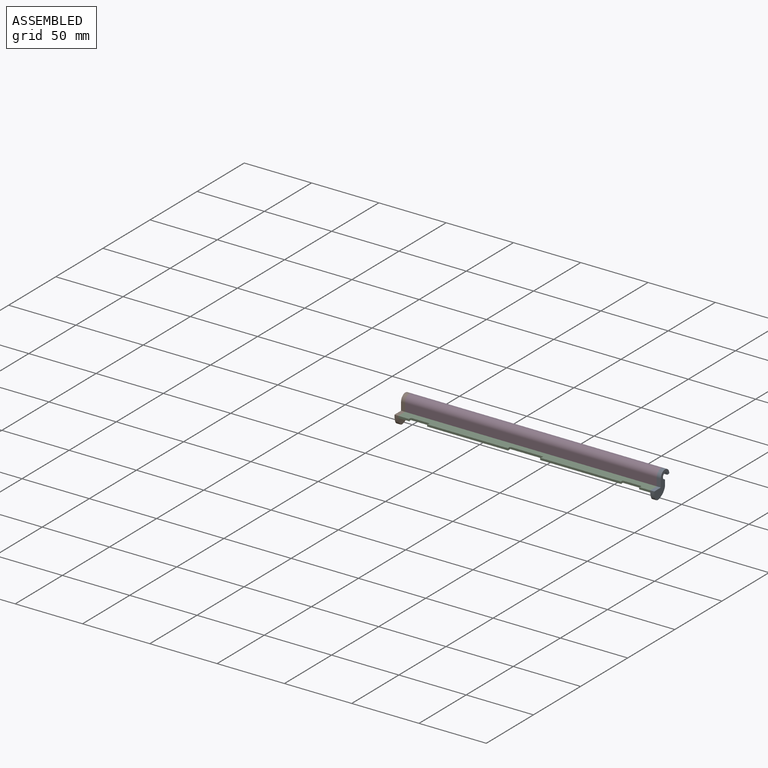
[diagram: assembled view]
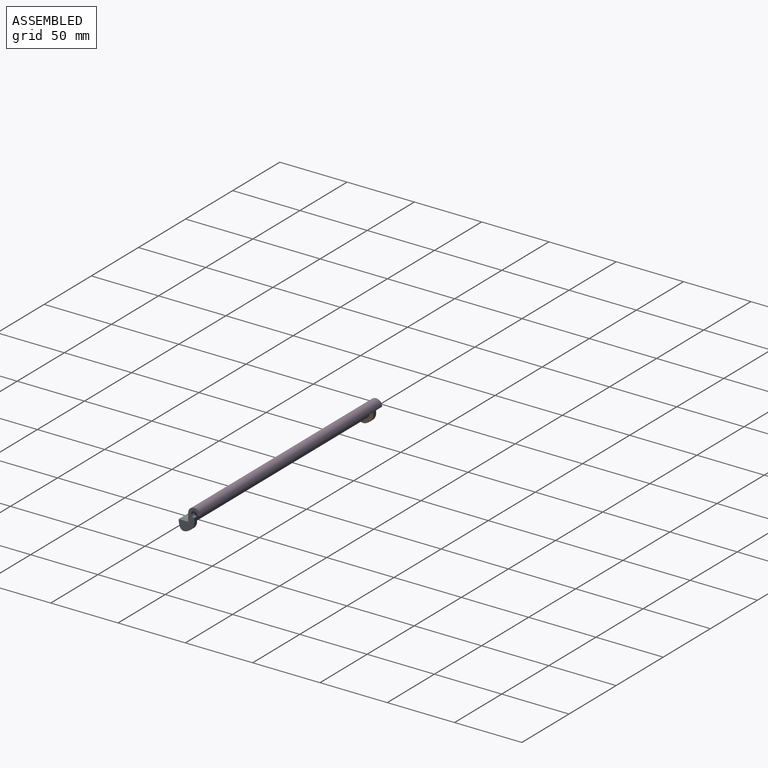
[diagram: assembled view, second angle]
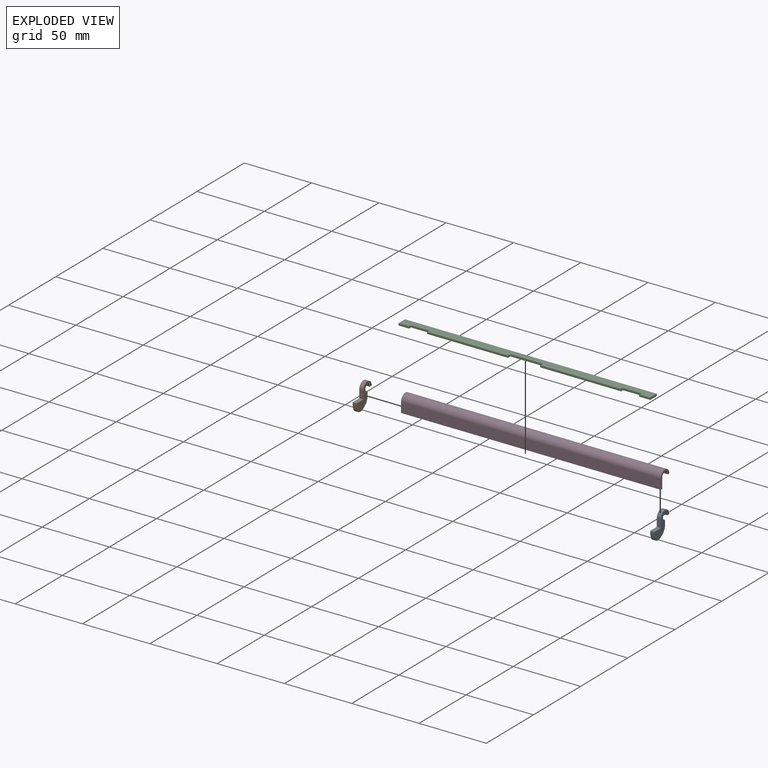
[diagram: exploded view]
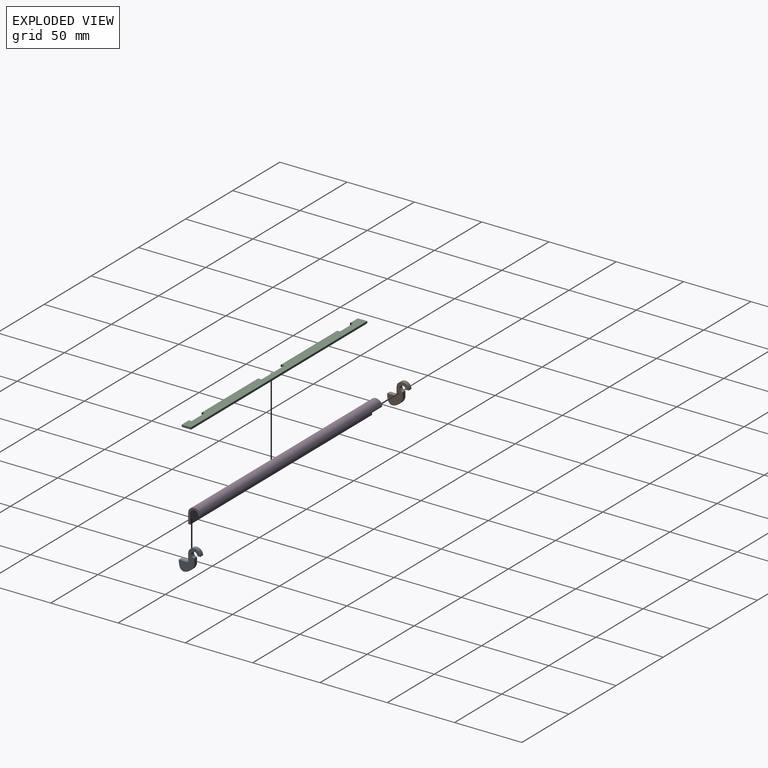
[diagram: exploded view, second angle]
ASSEMBLY  parts=4 mates=3
PART A: 9 faces, bbox 16x3x18.1 mm
  f0: cylinder r=4.5mm len=9mm, axis (0,1,0), area 42.4mm2, adj f1,f6,f7,f8
  f1: plane 6x3mm, normal (-1,0,0), area 18mm2, adj f0,f2,f7,f8
  f2: plane 7x3mm, normal (0,0,1), area 21mm2, adj f1,f3,f7,f8
  f3: extruded ~11.5x7.09mm, area 61mm2, adj f2,f4,f7,f8
  f4: plane 3.75x3mm, normal (1,0,0), area 11.2mm2, adj f3,f5,f7,f8
  f5: cylinder r=2.25mm len=4.5mm, axis (0,1,0), area 31.8mm2, adj f4,f6,f7,f8
  f6: plane 3x2.25mm, normal (0,0,-1), area 6.7mm2, adj f0,f5,f7,f8
  f7: plane 18.06x16.01mm, normal (0,-1,0), area 110mm2, adj f0,f1,f2,f3,f4,f5,f6
  f8: plane 18.06x16.01mm, normal (0,1,0), area 110mm2, adj f0,f1,f2,f3,f4,f5,f6
PART B: same geometry as A
PART C: 30 faces, bbox 187x7x1.5 mm
  f0: plane 1.5x1mm, normal (-1,0,0), area 1.5mm2, adj f1,f27,f28,f29
  f1: cylinder r=0.5mm len=1.5mm, axis (0,0,-1), area 1.2mm2, adj f0,f2,f28,f29
  f2: plane 60.5x1.5mm, normal (0,-1,0), area 90.8mm2, adj f1,f3,f28,f29
  f3: cylinder r=0.5mm len=1.5mm, axis (0,0,-1), area 1.2mm2, adj f2,f4,f28,f29
  f4: plane 1.5x1.5mm, normal (1,0,0), area 2.3mm2, adj f3,f5,f28,f29
  f5: cylinder r=0.5mm len=1.5mm, axis (0,0,-1), area 1.2mm2, adj f4,f6,f28,f29
  f6: plane 23.5x1.5mm, normal (0,-1,0), area 35.2mm2, adj f5,f7,f28,f29
  f7: cylinder r=0.5mm len=1.5mm, axis (0,0,-1), area 1.2mm2, adj f6,f8,f28,f29
  f8: plane 1.5x1.5mm, normal (-1,0,0), area 2.3mm2, adj f7,f9,f28,f29
  f9: cylinder r=0.5mm len=1.5mm, axis (0,0,-1), area 1.2mm2, adj f8,f10,f28,f29
  f10: plane 60.5x1.5mm, normal (0,-1,0), area 90.8mm2, adj f9,f11,f28,f29
  f11: cylinder r=0.5mm len=1.5mm, axis (0,0,-1), area 1.2mm2, adj f10,f12,f28,f29
  f12: plane 1.5x1mm, normal (1,0,0), area 1.5mm2, adj f11,f13,f28,f29
  f13: cylinder r=0.5mm len=1.5mm, axis (0,0,-1), area 1.2mm2, adj f12,f14,f28,f29
  f14: plane 13x1.5mm, normal (0,-1,0), area 19.5mm2, adj f13,f15,f28,f29
  f15: cylinder r=0.5mm len=1.5mm, axis (0,0,-1), area 1.2mm2, adj f14,f16,f28,f29
  f16: plane 1.5x1mm, normal (-1,0,0), area 1.5mm2, adj f15,f17,f28,f29
  f17: cylinder r=0.5mm len=1.5mm, axis (0,0,-1), area 1.2mm2, adj f16,f18,f28,f29
  f18: plane 8.25x1.5mm, normal (0,-1,0), area 12.4mm2, adj f17,f19,f28,f29
  f19: plane 7x1.5mm, normal (1,0,0), area 10.5mm2, adj f18,f20,f28,f29
  f20: plane 187x1.5mm, normal (0,1,0), area 280.5mm2, adj f19,f21,f28,f29
  f21: plane 7x1.5mm, normal (-1,0,0), area 10.5mm2, adj f20,f22,f28,f29
  f22: plane 8.25x1.5mm, normal (0,-1,0), area 12.4mm2, adj f21,f23,f28,f29
  f23: cylinder r=0.5mm len=1.5mm, axis (0,0,-1), area 1.2mm2, adj f22,f24,f28,f29
  f24: plane 1.5x1mm, normal (1,0,0), area 1.5mm2, adj f23,f25,f28,f29
  f25: cylinder r=0.5mm len=1.5mm, axis (0,0,-1), area 1.2mm2, adj f24,f26,f28,f29
  f26: plane 13x1.5mm, normal (0,-1,0), area 19.5mm2, adj f25,f27,f28,f29
  f27: cylinder r=0.5mm len=1.5mm, axis (0,0,-1), area 1.2mm2, adj f0,f26,f28,f29
  f28: plane 187x7mm, normal (0,0,1), area 1192.4mm2, adj f0,f1,f2,f3,f4,f5,f6,f7
  f29: plane 187x7mm, normal (0,0,-1), area 1192.4mm2, adj f0,f1,f2,f3,f4,f5,f6,f7
PART D: 8 faces, bbox 9x193x12 mm
  f0: cylinder r=4.5mm len=193mm, axis (0,1,0), area 2728.5mm2, adj f1,f5,f6,f7
  f1: plane 193x7.54mm, normal (-1,0,0), area 1455.3mm2, adj f0,f2,f6,f7
  f2: plane 193x1.5mm, normal (0,0,-1), area 289.5mm2, adj f1,f3,f6,f7
  f3: plane 193x7.54mm, normal (1,0,0), area 1455.3mm2, adj f2,f4,f6,f7
  f4: cylinder r=3mm len=193mm, axis (0,1,0), area 1819mm2, adj f3,f5,f6,f7
  f5: plane 193x1.5mm, normal (0,0,-1), area 289.5mm2, adj f0,f4,f6,f7
  f6: plane 12.04x9mm, normal (0,-1,0), area 29mm2, adj f0,f1,f2,f3,f4,f5
  f7: plane 12.04x9mm, normal (0,1,0), area 29mm2, adj f0,f1,f2,f3,f4,f5
PLACE A rot(axis=(0,0,1),90deg) t=(-31.43,-98.32,-1.03)mm
PLACE B rot(axis=(0,0,1),90deg) t=(-221.43,-98.32,-1.03)mm
PLACE C t=(18.32,-111.16,-8.53)mm
PLACE D rot(axis=(0,0,1),90deg) t=(-221.43,-102.82,-7.07)mm
MATE fastened A.f8 <-> C.f19  axis (-1,0,0) through (-31.43,-106.32,-7.03)mm
MATE fastened B.f0 <-> D.f0  axis (-1,0,0) through (-221.43,-98.32,-1.03)mm
MATE fastened D.f0 <-> A.f0  axis (1,0,0) through (-28.43,-98.32,-1.03)mm
